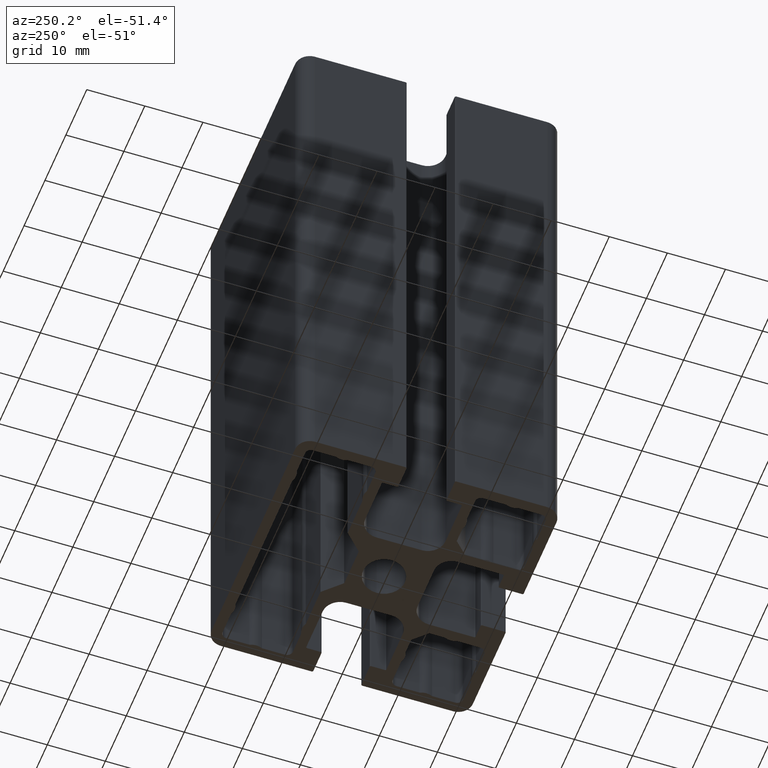
[diagram: clean part render]
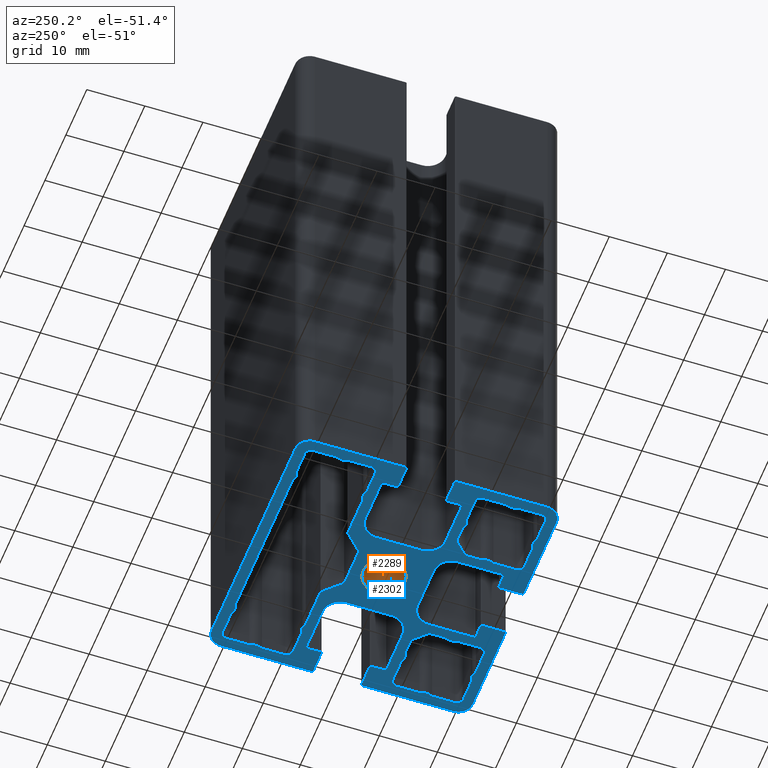
[diagram: same view with the hole feature highlighted: cylindrical wall and planar end face, labeled with their STEP entity ids]
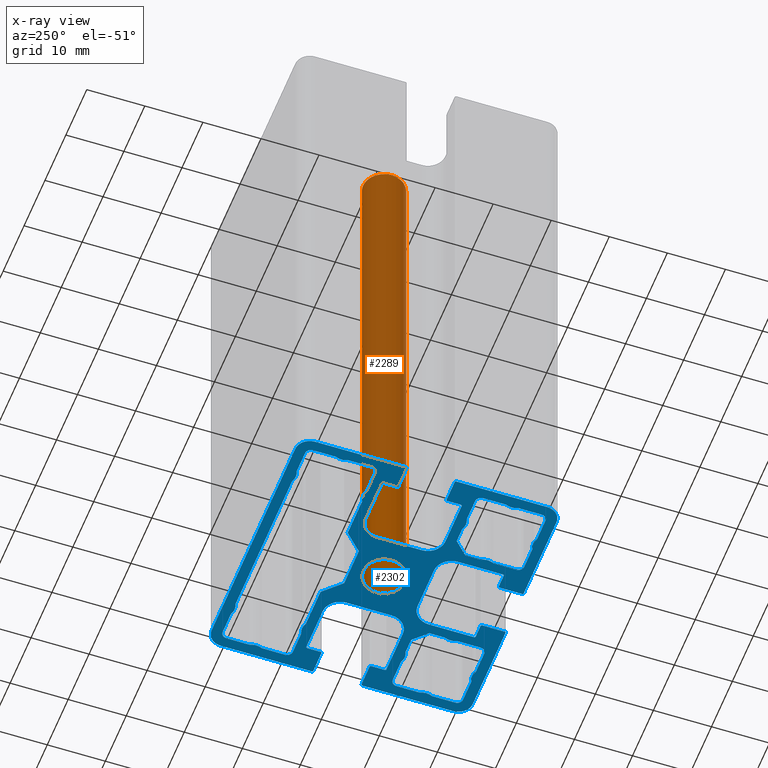
[diagram: x-ray of the same camera — body ghosted, the hole faces saturated]
A machine part, auxiliary view. The highlighted faces form one hole feature of diameter 7.2 mm: the cylindrical wall (entity #2289, orange) and its adjacent planar end face (entity #2302, blue) — they share a circular edge in the B-rep.
The next image is the same camera in x-ray (body ghosted, the hole faces saturated) — the bore reads through the body.
Wall:
#15=FACE_BOUND('',#400,.T.);
#120=CIRCLE('',#2503,3.6);
#121=CIRCLE('',#2504,3.6);
#178=CYLINDRICAL_SURFACE('',#2502,3.6);
#284=FACE_OUTER_BOUND('',#399,.T.);
#399=EDGE_LOOP('',(#1854));
#400=EDGE_LOOP('',(#1855));
#1094=VERTEX_POINT('',#3819);
#1095=VERTEX_POINT('',#3821);
#1418=EDGE_CURVE('',#1094,#1094,#120,.T.);
#1419=EDGE_CURVE('',#1095,#1095,#121,.T.);
#1854=ORIENTED_EDGE('',*,*,#1418,.F.);
#1855=ORIENTED_EDGE('',*,*,#1419,.F.);
#2289=ADVANCED_FACE('',(#284,#15),#178,.F.);
#2502=AXIS2_PLACEMENT_3D('',#3818,#3132,#3133);
#2503=AXIS2_PLACEMENT_3D('',#3820,#3134,#3135);
#2504=AXIS2_PLACEMENT_3D('',#3822,#3136,#3137);
#3132=DIRECTION('center_axis',(0.,0.,1.));
#3133=DIRECTION('ref_axis',(-1.,0.,0.));
#3134=DIRECTION('center_axis',(0.,0.,-1.));
#3135=DIRECTION('ref_axis',(-1.,0.,0.));
#3136=DIRECTION('center_axis',(0.,0.,1.));
#3137=DIRECTION('ref_axis',(-1.,0.,0.));
#3818=CARTESIAN_POINT('Origin',(0.,0.,0.));
#3819=CARTESIAN_POINT('',(3.6,-4.40872847693047E-16,100.));
#3820=CARTESIAN_POINT('Origin',(0.,0.,100.));
#3821=CARTESIAN_POINT('',(3.6,4.40872847693047E-16,0.));
#3822=CARTESIAN_POINT('Origin',(0.,0.,0.));
End face:
#20=FACE_BOUND('',#418,.T.);
#21=FACE_BOUND('',#419,.T.);
#22=FACE_BOUND('',#420,.T.);
#23=FACE_BOUND('',#421,.T.);
#25=CIRCLE('',#2309,2.5);
#27=CIRCLE('',#2313,1.);
#29=CIRCLE('',#2317,2.50000000000001);
#31=CIRCLE('',#2321,1.);
#33=CIRCLE('',#2325,2.5);
#35=CIRCLE('',#2329,1.);
#37=CIRCLE('',#2333,2.5);
#39=CIRCLE('',#2338,1.);
#41=CIRCLE('',#2342,2.50000000000001);
#43=CIRCLE('',#2346,1.);
#45=CIRCLE('',#2350,2.5);
#47=CIRCLE('',#2358,2.5);
#49=CIRCLE('',#2362,1.);
#51=CIRCLE('',#2366,2.5);
#53=CIRCLE('',#2370,1.);
#55=CIRCLE('',#2374,2.5);
#57=CIRCLE('',#2378,2.5);
#59=CIRCLE('',#2382,1.);
#61=CIRCLE('',#2386,2.5);
#63=CIRCLE('',#2392,2.5);
#65=CIRCLE('',#2396,1.);
#67=CIRCLE('',#2400,2.5);
#69=CIRCLE('',#2404,1.);
#71=CIRCLE('',#2408,2.5);
#73=CIRCLE('',#2411,3.);
#75=CIRCLE('',#2415,0.2);
#77=CIRCLE('',#2419,0.199999999999999);
#79=CIRCLE('',#2423,0.2);
#81=CIRCLE('',#2426,0.199999999999999);
#83=CIRCLE('',#2430,0.199999999999999);
#85=CIRCLE('',#2434,0.200000000000003);
#87=CIRCLE('',#2438,3.);
#89=CIRCLE('',#2443,3.);
#91=CIRCLE('',#2447,0.199999999999999);
#93=CIRCLE('',#2451,0.2);
#95=CIRCLE('',#2455,0.200000000000003);
#97=CIRCLE('',#2458,0.2);
#99=CIRCLE('',#2462,0.199999999999999);
#101=CIRCLE('',#2466,0.2);
#103=CIRCLE('',#2470,3.);
#105=CIRCLE('',#2473,3.);
#107=CIRCLE('',#2477,0.199999999999999);
#109=CIRCLE('',#2481,0.199999999999999);
#111=CIRCLE('',#2485,0.199999999999999);
#113=CIRCLE('',#2488,0.200000000000003);
#115=CIRCLE('',#2492,0.199999999999999);
#117=CIRCLE('',#2496,0.199999999999999);
#119=CIRCLE('',#2500,3.);
#121=CIRCLE('',#2504,3.6);
#126=CIRCLE('',#2514,2.5);
#127=CIRCLE('',#2517,2.5);
#128=CIRCLE('',#2520,2.5);
#129=CIRCLE('',#2523,2.5);
#297=FACE_OUTER_BOUND('',#417,.T.);
#417=EDGE_LOOP('',(#2013,#2014,#2015,#2016,#2017,#2018,#2019,#2020,#2021,
#2022,#2023,#2024,#2025,#2026,#2027,#2028,#2029,#2030,#2031,#2032,#2033,
#2034,#2035,#2036,#2037,#2038,#2039,#2040,#2041,#2042,#2043,#2044,#2045,
#2046,#2047,#2048,#2049,#2050,#2051,#2052,#2053,#2054,#2055,#2056,#2057,
#2058,#2059,#2060,#2061,#2062,#2063,#2064,#2065,#2066,#2067,#2068));
#418=EDGE_LOOP('',(#2069,#2070,#2071,#2072,#2073,#2074,#2075,#2076,#2077,
#2078,#2079,#2080,#2081,#2082,#2083,#2084));
#419=EDGE_LOOP('',(#2085,#2086,#2087,#2088,#2089,#2090,#2091,#2092,#2093,
#2094,#2095,#2096,#2097,#2098,#2099,#2100,#2101,#2102,#2103,#2104,#2105,
#2106,#2107,#2108));
#420=EDGE_LOOP('',(#2109,#2110,#2111,#2112,#2113,#2114,#2115,#2116,#2117,
#2118,#2119,#2120,#2121,#2122,#2123,#2124));
#421=EDGE_LOOP('',(#2125));
#424=LINE('',#3210,#656);
#427=LINE('',#3216,#659);
#431=LINE('',#3228,#663);
#435=LINE('',#3240,#667);
#439=LINE('',#3252,#671);
#443=LINE('',#3264,#675);
#447=LINE('',#3276,#679);
#451=LINE('',#3288,#683);
#455=LINE('',#3298,#687);
#458=LINE('',#3306,#690);
#462=LINE('',#3318,#694);
#466=LINE('',#3330,#698);
#470=LINE('',#3342,#702);
#474=LINE('',#3354,#706);
#477=LINE('',#3360,#709);
#480=LINE('',#3366,#712);
#483=LINE('',#3372,#715);
#486=LINE('',#3378,#718);
#490=LINE('',#3390,#722);
#494=LINE('',#3402,#726);
#498=LINE('',#3414,#730);
#502=LINE('',#3426,#734);
#506=LINE('',#3438,#738);
#510=LINE('',#3450,#742);
#515=LINE('',#3463,#747);
#519=LINE('',#3475,#751);
#522=LINE('',#3481,#754);
#525=LINE('',#3487,#757);
#529=LINE('',#3499,#761);
#533=LINE('',#3511,#765);
#537=LINE('',#3523,#769);
#541=LINE('',#3535,#773);
#545=LINE('',#3552,#777);
#549=LINE('',#3564,#781);
#553=LINE('',#3576,#785);
#559=LINE('',#3597,#791);
#563=LINE('',#3609,#795);
#567=LINE('',#3621,#799);
#571=LINE('',#3631,#803);
#574=LINE('',#3639,#806);
#579=LINE('',#3652,#811);
#583=LINE('',#3664,#815);
#587=LINE('',#3676,#819);
#593=LINE('',#3697,#825);
#597=LINE('',#3709,#829);
#601=LINE('',#3721,#833);
#605=LINE('',#3738,#837);
#609=LINE('',#3750,#841);
#613=LINE('',#3762,#845);
#619=LINE('',#3783,#851);
#623=LINE('',#3795,#855);
#627=LINE('',#3807,#859);
#631=LINE('',#3817,#863);
#632=LINE('',#3825,#864);
#637=LINE('',#3834,#869);
#638=LINE('',#3837,#870);
#646=LINE('',#3860,#878);
#648=LINE('',#3866,#880);
#651=LINE('',#3874,#883);
#653=LINE('',#3880,#885);
#656=VECTOR('',#2532,3.25552672718276);
#659=VECTOR('',#2537,2.65827023898986);
#663=VECTOR('',#2549,3.96027526411484);
#667=VECTOR('',#2561,3.96027526411483);
#671=VECTOR('',#2573,3.96027526411483);
#675=VECTOR('',#2585,3.96027526411483);
#679=VECTOR('',#2597,3.96027526411483);
#683=VECTOR('',#2609,3.96027526411483);
#687=VECTOR('',#2621,2.65827023898985);
#690=VECTOR('',#2626,3.96027526411483);
#694=VECTOR('',#2638,3.96027526411482);
#698=VECTOR('',#2650,3.96027526411483);
#702=VECTOR('',#2662,3.96027526411483);
#706=VECTOR('',#2674,7.06027526411483);
#709=VECTOR('',#2679,4.24264068711929);
#712=VECTOR('',#2684,6.99999999999999);
#715=VECTOR('',#2689,4.24264068711929);
#718=VECTOR('',#2694,7.06027526411483);
#722=VECTOR('',#2706,3.96027526411483);
#726=VECTOR('',#2718,3.96027526411483);
#730=VECTOR('',#2730,3.96027526411483);
#734=VECTOR('',#2742,3.96027526411483);
#738=VECTOR('',#2754,27.1205505282297);
#742=VECTOR('',#2766,3.96027526411483);
#747=VECTOR('',#2779,3.96027526411482);
#751=VECTOR('',#2791,2.65827023898984);
#754=VECTOR('',#2796,3.25552672718276);
#757=VECTOR('',#2801,2.65827023898985);
#761=VECTOR('',#2813,3.96027526411483);
#765=VECTOR('',#2825,3.96027526411483);
#769=VECTOR('',#2837,3.96027526411483);
#773=VECTOR('',#2849,3.96027526411483);
#777=VECTOR('',#2867,7.8);
#781=VECTOR('',#2879,2.35);
#785=VECTOR('',#2891,3.90000000000001);
#791=VECTOR('',#2911,3.9);
#795=VECTOR('',#2923,2.35);
#799=VECTOR('',#2935,7.8);
#803=VECTOR('',#2947,7.8);
#806=VECTOR('',#2952,7.8);
#811=VECTOR('',#2965,7.8);
#815=VECTOR('',#2977,2.35);
#819=VECTOR('',#2989,3.9);
#825=VECTOR('',#3009,3.9);
#829=VECTOR('',#3021,2.35);
#833=VECTOR('',#3033,7.8);
#837=VECTOR('',#3051,7.8);
#841=VECTOR('',#3063,2.35);
#845=VECTOR('',#3075,3.90000000000001);
#851=VECTOR('',#3095,3.9);
#855=VECTOR('',#3107,2.35);
#859=VECTOR('',#3119,7.8);
#863=VECTOR('',#3131,7.8);
#864=VECTOR('',#3140,15.65);
#869=VECTOR('',#3147,15.65);
#870=VECTOR('',#3150,15.65);
#878=VECTOR('',#3174,15.65);
#880=VECTOR('',#3182,15.65);
#883=VECTOR('',#3191,40.);
#885=VECTOR('',#3199,15.65);
#888=VERTEX_POINT('',#3207);
#889=VERTEX_POINT('',#3209);
#891=VERTEX_POINT('',#3215);
#893=VERTEX_POINT('',#3221);
#895=VERTEX_POINT('',#3227);
#897=VERTEX_POINT('',#3233);
#899=VERTEX_POINT('',#3239);
#901=VERTEX_POINT('',#3245);
#903=VERTEX_POINT('',#3251);
#905=VERTEX_POINT('',#3257);
#907=VERTEX_POINT('',#3263);
#909=VERTEX_POINT('',#3269);
#911=VERTEX_POINT('',#3275);
#913=VERTEX_POINT('',#3281);
#915=VERTEX_POINT('',#3287);
#917=VERTEX_POINT('',#3293);
#920=VERTEX_POINT('',#3303);
#921=VERTEX_POINT('',#3305);
#923=VERTEX_POINT('',#3311);
#925=VERTEX_POINT('',#3317);
#927=VERTEX_POINT('',#3323);
#929=VERTEX_POINT('',#3329);
#931=VERTEX_POINT('',#3335);
#933=VERTEX_POINT('',#3341);
#935=VERTEX_POINT('',#3347);
#937=VERTEX_POINT('',#3353);
#939=VERTEX_POINT('',#3359);
#941=VERTEX_POINT('',#3365);
#943=VERTEX_POINT('',#3371);
#945=VERTEX_POINT('',#3377);
#947=VERTEX_POINT('',#3383);
#949=VERTEX_POINT('',#3389);
#951=VERTEX_POINT('',#3395);
#953=VERTEX_POINT('',#3401);
#955=VERTEX_POINT('',#3407);
#957=VERTEX_POINT('',#3413);
#959=VERTEX_POINT('',#3419);
#961=VERTEX_POINT('',#3425);
#963=VERTEX_POINT('',#3431);
#965=VERTEX_POINT('',#3437);
#968=VERTEX_POINT('',#3447);
#969=VERTEX_POINT('',#3449);
#971=VERTEX_POINT('',#3455);
#973=VERTEX_POINT('',#3461);
#975=VERTEX_POINT('',#3467);
#977=VERTEX_POINT('',#3473);
#979=VERTEX_POINT('',#3479);
#981=VERTEX_POINT('',#3485);
#983=VERTEX_POINT('',#3491);
#985=VERTEX_POINT('',#3497);
#987=VERTEX_POINT('',#3503);
#989=VERTEX_POINT('',#3509);
#991=VERTEX_POINT('',#3515);
#993=VERTEX_POINT('',#3521);
#995=VERTEX_POINT('',#3527);
#997=VERTEX_POINT('',#3533);
#1000=VERTEX_POINT('',#3543);
#1001=VERTEX_POINT('',#3545);
#1003=VERTEX_POINT('',#3551);
#1005=VERTEX_POINT('',#3557);
#1007=VERTEX_POINT('',#3563);
#1009=VERTEX_POINT('',#3569);
#1011=VERTEX_POINT('',#3575);
#1013=VERTEX_POINT('',#3581);
#1016=VERTEX_POINT('',#3588);
#1017=VERTEX_POINT('',#3590);
#1019=VERTEX_POINT('',#3596);
#1021=VERTEX_POINT('',#3602);
#1023=VERTEX_POINT('',#3608);
#1025=VERTEX_POINT('',#3614);
#1027=VERTEX_POINT('',#3620);
#1029=VERTEX_POINT('',#3626);
#1032=VERTEX_POINT('',#3636);
#1033=VERTEX_POINT('',#3638);
#1035=VERTEX_POINT('',#3644);
#1037=VERTEX_POINT('',#3650);
#1039=VERTEX_POINT('',#3656);
#1041=VERTEX_POINT('',#3662);
#1043=VERTEX_POINT('',#3668);
#1045=VERTEX_POINT('',#3674);
#1047=VERTEX_POINT('',#3680);
#1050=VERTEX_POINT('',#3687);
#1051=VERTEX_POINT('',#3689);
#1053=VERTEX_POINT('',#3695);
#1055=VERTEX_POINT('',#3701);
#1057=VERTEX_POINT('',#3707);
#1059=VERTEX_POINT('',#3713);
#1061=VERTEX_POINT('',#3719);
#1064=VERTEX_POINT('',#3729);
#1065=VERTEX_POINT('',#3731);
#1067=VERTEX_POINT('',#3737);
#1069=VERTEX_POINT('',#3743);
#1071=VERTEX_POINT('',#3749);
#1073=VERTEX_POINT('',#3755);
#1075=VERTEX_POINT('',#3761);
#1077=VERTEX_POINT('',#3767);
#1080=VERTEX_POINT('',#3774);
#1081=VERTEX_POINT('',#3776);
#1083=VERTEX_POINT('',#3782);
#1085=VERTEX_POINT('',#3788);
#1087=VERTEX_POINT('',#3794);
#1089=VERTEX_POINT('',#3800);
#1091=VERTEX_POINT('',#3806);
#1093=VERTEX_POINT('',#3812);
#1095=VERTEX_POINT('',#3821);
#1096=VERTEX_POINT('',#3824);
#1099=VERTEX_POINT('',#3832);
#1100=VERTEX_POINT('',#3836);
#1107=VERTEX_POINT('',#3858);
#1108=VERTEX_POINT('',#3864);
#1109=VERTEX_POINT('',#3868);
#1110=VERTEX_POINT('',#3872);
#1111=VERTEX_POINT('',#3876);
#1114=EDGE_CURVE('',#889,#888,#424,.T.);
#1117=EDGE_CURVE('',#891,#889,#427,.T.);
#1120=EDGE_CURVE('',#893,#891,#25,.T.);
#1123=EDGE_CURVE('',#895,#893,#431,.T.);
#1126=EDGE_CURVE('',#897,#895,#27,.T.);
#1129=EDGE_CURVE('',#899,#897,#435,.T.);
#1132=EDGE_CURVE('',#901,#899,#29,.T.);
#1135=EDGE_CURVE('',#903,#901,#439,.T.);
#1138=EDGE_CURVE('',#905,#903,#31,.T.);
#1141=EDGE_CURVE('',#907,#905,#443,.T.);
#1144=EDGE_CURVE('',#909,#907,#33,.T.);
#1147=EDGE_CURVE('',#911,#909,#447,.T.);
#1150=EDGE_CURVE('',#913,#911,#35,.T.);
#1153=EDGE_CURVE('',#915,#913,#451,.T.);
#1156=EDGE_CURVE('',#917,#915,#37,.T.);
#1159=EDGE_CURVE('',#888,#917,#455,.T.);
#1162=EDGE_CURVE('',#921,#920,#458,.T.);
#1165=EDGE_CURVE('',#923,#921,#39,.T.);
#1168=EDGE_CURVE('',#925,#923,#462,.T.);
#1171=EDGE_CURVE('',#927,#925,#41,.T.);
#1174=EDGE_CURVE('',#929,#927,#466,.T.);
#1177=EDGE_CURVE('',#931,#929,#43,.T.);
#1180=EDGE_CURVE('',#933,#931,#470,.T.);
#1183=EDGE_CURVE('',#935,#933,#45,.T.);
#1186=EDGE_CURVE('',#937,#935,#474,.T.);
#1189=EDGE_CURVE('',#939,#937,#477,.T.);
#1192=EDGE_CURVE('',#941,#939,#480,.T.);
#1195=EDGE_CURVE('',#943,#941,#483,.T.);
#1198=EDGE_CURVE('',#945,#943,#486,.T.);
#1201=EDGE_CURVE('',#947,#945,#47,.T.);
#1204=EDGE_CURVE('',#949,#947,#490,.T.);
#1207=EDGE_CURVE('',#951,#949,#49,.T.);
#1210=EDGE_CURVE('',#953,#951,#494,.T.);
#1213=EDGE_CURVE('',#955,#953,#51,.T.);
#1216=EDGE_CURVE('',#957,#955,#498,.T.);
#1219=EDGE_CURVE('',#959,#957,#53,.T.);
#1222=EDGE_CURVE('',#961,#959,#502,.T.);
#1225=EDGE_CURVE('',#963,#961,#55,.T.);
#1228=EDGE_CURVE('',#965,#963,#506,.T.);
#1231=EDGE_CURVE('',#920,#965,#57,.T.);
#1234=EDGE_CURVE('',#969,#968,#510,.T.);
#1238=EDGE_CURVE('',#968,#971,#59,.T.);
#1241=EDGE_CURVE('',#971,#973,#515,.T.);
#1244=EDGE_CURVE('',#973,#975,#61,.T.);
#1247=EDGE_CURVE('',#975,#977,#519,.T.);
#1250=EDGE_CURVE('',#977,#979,#522,.T.);
#1253=EDGE_CURVE('',#979,#981,#525,.T.);
#1256=EDGE_CURVE('',#981,#983,#63,.T.);
#1259=EDGE_CURVE('',#983,#985,#529,.T.);
#1262=EDGE_CURVE('',#985,#987,#65,.T.);
#1265=EDGE_CURVE('',#987,#989,#533,.T.);
#1268=EDGE_CURVE('',#989,#991,#67,.T.);
#1271=EDGE_CURVE('',#991,#993,#537,.T.);
#1274=EDGE_CURVE('',#993,#995,#69,.T.);
#1277=EDGE_CURVE('',#995,#997,#541,.T.);
#1279=EDGE_CURVE('',#997,#969,#71,.T.);
#1282=EDGE_CURVE('',#1001,#1000,#73,.T.);
#1285=EDGE_CURVE('',#1003,#1001,#545,.T.);
#1288=EDGE_CURVE('',#1005,#1003,#75,.T.);
#1291=EDGE_CURVE('',#1007,#1005,#549,.T.);
#1294=EDGE_CURVE('',#1009,#1007,#77,.T.);
#1297=EDGE_CURVE('',#1011,#1009,#553,.T.);
#1300=EDGE_CURVE('',#1013,#1011,#79,.T.);
#1304=EDGE_CURVE('',#1017,#1016,#81,.T.);
#1307=EDGE_CURVE('',#1019,#1017,#559,.T.);
#1310=EDGE_CURVE('',#1021,#1019,#83,.T.);
#1313=EDGE_CURVE('',#1023,#1021,#563,.T.);
#1316=EDGE_CURVE('',#1025,#1023,#85,.T.);
#1319=EDGE_CURVE('',#1027,#1025,#567,.T.);
#1322=EDGE_CURVE('',#1029,#1027,#87,.T.);
#1325=EDGE_CURVE('',#1000,#1029,#571,.T.);
#1328=EDGE_CURVE('',#1033,#1032,#574,.T.);
#1332=EDGE_CURVE('',#1032,#1035,#89,.T.);
#1335=EDGE_CURVE('',#1035,#1037,#579,.T.);
#1338=EDGE_CURVE('',#1037,#1039,#91,.T.);
#1341=EDGE_CURVE('',#1039,#1041,#583,.T.);
#1344=EDGE_CURVE('',#1041,#1043,#93,.T.);
#1347=EDGE_CURVE('',#1043,#1045,#587,.T.);
#1350=EDGE_CURVE('',#1045,#1047,#95,.T.);
#1353=EDGE_CURVE('',#1051,#1050,#97,.T.);
#1357=EDGE_CURVE('',#1050,#1053,#593,.T.);
#1360=EDGE_CURVE('',#1053,#1055,#99,.T.);
#1363=EDGE_CURVE('',#1055,#1057,#597,.T.);
#1366=EDGE_CURVE('',#1057,#1059,#101,.T.);
#1369=EDGE_CURVE('',#1059,#1061,#601,.T.);
#1371=EDGE_CURVE('',#1061,#1033,#103,.T.);
#1374=EDGE_CURVE('',#1065,#1064,#105,.T.);
#1377=EDGE_CURVE('',#1067,#1065,#605,.T.);
#1380=EDGE_CURVE('',#1069,#1067,#107,.T.);
#1383=EDGE_CURVE('',#1071,#1069,#609,.T.);
#1386=EDGE_CURVE('',#1073,#1071,#109,.T.);
#1389=EDGE_CURVE('',#1075,#1073,#613,.T.);
#1392=EDGE_CURVE('',#1077,#1075,#111,.T.);
#1396=EDGE_CURVE('',#1081,#1080,#113,.T.);
#1399=EDGE_CURVE('',#1083,#1081,#619,.T.);
#1402=EDGE_CURVE('',#1085,#1083,#115,.T.);
#1405=EDGE_CURVE('',#1087,#1085,#623,.T.);
#1408=EDGE_CURVE('',#1089,#1087,#117,.T.);
#1411=EDGE_CURVE('',#1091,#1089,#627,.T.);
#1414=EDGE_CURVE('',#1093,#1091,#119,.T.);
#1417=EDGE_CURVE('',#1064,#1093,#631,.T.);
#1419=EDGE_CURVE('',#1095,#1095,#121,.T.);
#1420=EDGE_CURVE('',#1096,#1013,#632,.T.);
#1425=EDGE_CURVE('',#1047,#1099,#637,.T.);
#1426=EDGE_CURVE('',#1100,#1077,#638,.T.);
#1437=EDGE_CURVE('',#1099,#1100,#126,.T.);
#1439=EDGE_CURVE('',#1080,#1107,#646,.T.);
#1440=EDGE_CURVE('',#1107,#1096,#127,.T.);
#1442=EDGE_CURVE('',#1016,#1108,#648,.T.);
#1444=EDGE_CURVE('',#1108,#1109,#128,.T.);
#1446=EDGE_CURVE('',#1109,#1110,#651,.T.);
#1448=EDGE_CURVE('',#1110,#1111,#129,.T.);
#1449=EDGE_CURVE('',#1111,#1051,#653,.T.);
#2013=ORIENTED_EDGE('',*,*,#1304,.T.);
#2014=ORIENTED_EDGE('',*,*,#1442,.T.);
#2015=ORIENTED_EDGE('',*,*,#1444,.T.);
#2016=ORIENTED_EDGE('',*,*,#1446,.T.);
#2017=ORIENTED_EDGE('',*,*,#1448,.T.);
#2018=ORIENTED_EDGE('',*,*,#1449,.T.);
#2019=ORIENTED_EDGE('',*,*,#1353,.T.);
#2020=ORIENTED_EDGE('',*,*,#1357,.T.);
#2021=ORIENTED_EDGE('',*,*,#1360,.T.);
#2022=ORIENTED_EDGE('',*,*,#1363,.T.);
#2023=ORIENTED_EDGE('',*,*,#1366,.T.);
#2024=ORIENTED_EDGE('',*,*,#1369,.T.);
#2025=ORIENTED_EDGE('',*,*,#1371,.T.);
#2026=ORIENTED_EDGE('',*,*,#1328,.T.);
#2027=ORIENTED_EDGE('',*,*,#1332,.T.);
#2028=ORIENTED_EDGE('',*,*,#1335,.T.);
#2029=ORIENTED_EDGE('',*,*,#1338,.T.);
#2030=ORIENTED_EDGE('',*,*,#1341,.T.);
#2031=ORIENTED_EDGE('',*,*,#1344,.T.);
#2032=ORIENTED_EDGE('',*,*,#1347,.T.);
#2033=ORIENTED_EDGE('',*,*,#1350,.T.);
#2034=ORIENTED_EDGE('',*,*,#1425,.T.);
#2035=ORIENTED_EDGE('',*,*,#1437,.T.);
#2036=ORIENTED_EDGE('',*,*,#1426,.T.);
#2037=ORIENTED_EDGE('',*,*,#1392,.T.);
#2038=ORIENTED_EDGE('',*,*,#1389,.T.);
#2039=ORIENTED_EDGE('',*,*,#1386,.T.);
#2040=ORIENTED_EDGE('',*,*,#1383,.T.);
#2041=ORIENTED_EDGE('',*,*,#1380,.T.);
#2042=ORIENTED_EDGE('',*,*,#1377,.T.);
#2043=ORIENTED_EDGE('',*,*,#1374,.T.);
#2044=ORIENTED_EDGE('',*,*,#1417,.T.);
#2045=ORIENTED_EDGE('',*,*,#1414,.T.);
#2046=ORIENTED_EDGE('',*,*,#1411,.T.);
#2047=ORIENTED_EDGE('',*,*,#1408,.T.);
#2048=ORIENTED_EDGE('',*,*,#1405,.T.);
#2049=ORIENTED_EDGE('',*,*,#1402,.T.);
#2050=ORIENTED_EDGE('',*,*,#1399,.T.);
#2051=ORIENTED_EDGE('',*,*,#1396,.T.);
#2052=ORIENTED_EDGE('',*,*,#1439,.T.);
#2053=ORIENTED_EDGE('',*,*,#1440,.T.);
#2054=ORIENTED_EDGE('',*,*,#1420,.T.);
#2055=ORIENTED_EDGE('',*,*,#1300,.T.);
#2056=ORIENTED_EDGE('',*,*,#1297,.T.);
#2057=ORIENTED_EDGE('',*,*,#1294,.T.);
#2058=ORIENTED_EDGE('',*,*,#1291,.T.);
#2059=ORIENTED_EDGE('',*,*,#1288,.T.);
#2060=ORIENTED_EDGE('',*,*,#1285,.T.);
#2061=ORIENTED_EDGE('',*,*,#1282,.T.);
#2062=ORIENTED_EDGE('',*,*,#1325,.T.);
#2063=ORIENTED_EDGE('',*,*,#1322,.T.);
#2064=ORIENTED_EDGE('',*,*,#1319,.T.);
#2065=ORIENTED_EDGE('',*,*,#1316,.T.);
#2066=ORIENTED_EDGE('',*,*,#1313,.T.);
#2067=ORIENTED_EDGE('',*,*,#1310,.T.);
#2068=ORIENTED_EDGE('',*,*,#1307,.T.);
#2069=ORIENTED_EDGE('',*,*,#1114,.T.);
#2070=ORIENTED_EDGE('',*,*,#1159,.T.);
#2071=ORIENTED_EDGE('',*,*,#1156,.T.);
#2072=ORIENTED_EDGE('',*,*,#1153,.T.);
#2073=ORIENTED_EDGE('',*,*,#1150,.T.);
#2074=ORIENTED_EDGE('',*,*,#1147,.T.);
#2075=ORIENTED_EDGE('',*,*,#1144,.T.);
#2076=ORIENTED_EDGE('',*,*,#1141,.T.);
#2077=ORIENTED_EDGE('',*,*,#1138,.T.);
#2078=ORIENTED_EDGE('',*,*,#1135,.T.);
#2079=ORIENTED_EDGE('',*,*,#1132,.T.);
#2080=ORIENTED_EDGE('',*,*,#1129,.T.);
#2081=ORIENTED_EDGE('',*,*,#1126,.T.);
#2082=ORIENTED_EDGE('',*,*,#1123,.T.);
#2083=ORIENTED_EDGE('',*,*,#1120,.T.);
#2084=ORIENTED_EDGE('',*,*,#1117,.T.);
#2085=ORIENTED_EDGE('',*,*,#1162,.T.);
#2086=ORIENTED_EDGE('',*,*,#1231,.T.);
#2087=ORIENTED_EDGE('',*,*,#1228,.T.);
#2088=ORIENTED_EDGE('',*,*,#1225,.T.);
#2089=ORIENTED_EDGE('',*,*,#1222,.T.);
#2090=ORIENTED_EDGE('',*,*,#1219,.T.);
#2091=ORIENTED_EDGE('',*,*,#1216,.T.);
#2092=ORIENTED_EDGE('',*,*,#1213,.T.);
#2093=ORIENTED_EDGE('',*,*,#1210,.T.);
#2094=ORIENTED_EDGE('',*,*,#1207,.T.);
#2095=ORIENTED_EDGE('',*,*,#1204,.T.);
#2096=ORIENTED_EDGE('',*,*,#1201,.T.);
#2097=ORIENTED_EDGE('',*,*,#1198,.T.);
#2098=ORIENTED_EDGE('',*,*,#1195,.T.);
#2099=ORIENTED_EDGE('',*,*,#1192,.T.);
#2100=ORIENTED_EDGE('',*,*,#1189,.T.);
#2101=ORIENTED_EDGE('',*,*,#1186,.T.);
#2102=ORIENTED_EDGE('',*,*,#1183,.T.);
#2103=ORIENTED_EDGE('',*,*,#1180,.T.);
#2104=ORIENTED_EDGE('',*,*,#1177,.T.);
#2105=ORIENTED_EDGE('',*,*,#1174,.T.);
#2106=ORIENTED_EDGE('',*,*,#1171,.T.);
#2107=ORIENTED_EDGE('',*,*,#1168,.T.);
#2108=ORIENTED_EDGE('',*,*,#1165,.T.);
#2109=ORIENTED_EDGE('',*,*,#1234,.T.);
#2110=ORIENTED_EDGE('',*,*,#1238,.T.);
#2111=ORIENTED_EDGE('',*,*,#1241,.T.);
#2112=ORIENTED_EDGE('',*,*,#1244,.T.);
#2113=ORIENTED_EDGE('',*,*,#1247,.T.);
#2114=ORIENTED_EDGE('',*,*,#1250,.T.);
#2115=ORIENTED_EDGE('',*,*,#1253,.T.);
#2116=ORIENTED_EDGE('',*,*,#1256,.T.);
#2117=ORIENTED_EDGE('',*,*,#1259,.T.);
#2118=ORIENTED_EDGE('',*,*,#1262,.T.);
#2119=ORIENTED_EDGE('',*,*,#1265,.T.);
#2120=ORIENTED_EDGE('',*,*,#1268,.T.);
#2121=ORIENTED_EDGE('',*,*,#1271,.T.);
#2122=ORIENTED_EDGE('',*,*,#1274,.T.);
#2123=ORIENTED_EDGE('',*,*,#1277,.T.);
#2124=ORIENTED_EDGE('',*,*,#1279,.T.);
#2125=ORIENTED_EDGE('',*,*,#1419,.T.);
#2187=PLANE('',#2525);
#2302=ADVANCED_FACE('',(#297,#20,#21,#22,#23),#2187,.F.);
#2309=AXIS2_PLACEMENT_3D('',#3222,#2543,#2544);
#2313=AXIS2_PLACEMENT_3D('',#3234,#2555,#2556);
#2317=AXIS2_PLACEMENT_3D('',#3246,#2567,#2568);
#2321=AXIS2_PLACEMENT_3D('',#3258,#2579,#2580);
#2325=AXIS2_PLACEMENT_3D('',#3270,#2591,#2592);
#2329=AXIS2_PLACEMENT_3D('',#3282,#2603,#2604);
#2333=AXIS2_PLACEMENT_3D('',#3294,#2615,#2616);
#2338=AXIS2_PLACEMENT_3D('',#3312,#2632,#2633);
#2342=AXIS2_PLACEMENT_3D('',#3324,#2644,#2645);
#2346=AXIS2_PLACEMENT_3D('',#3336,#2656,#2657);
#2350=AXIS2_PLACEMENT_3D('',#3348,#2668,#2669);
#2358=AXIS2_PLACEMENT_3D('',#3384,#2700,#2701);
#2362=AXIS2_PLACEMENT_3D('',#3396,#2712,#2713);
#2366=AXIS2_PLACEMENT_3D('',#3408,#2724,#2725);
#2370=AXIS2_PLACEMENT_3D('',#3420,#2736,#2737);
#2374=AXIS2_PLACEMENT_3D('',#3432,#2748,#2749);
#2378=AXIS2_PLACEMENT_3D('',#3442,#2760,#2761);
#2382=AXIS2_PLACEMENT_3D('',#3457,#2773,#2774);
#2386=AXIS2_PLACEMENT_3D('',#3469,#2785,#2786);
#2392=AXIS2_PLACEMENT_3D('',#3493,#2807,#2808);
#2396=AXIS2_PLACEMENT_3D('',#3505,#2819,#2820);
#2400=AXIS2_PLACEMENT_3D('',#3517,#2831,#2832);
#2404=AXIS2_PLACEMENT_3D('',#3529,#2843,#2844);
#2408=AXIS2_PLACEMENT_3D('',#3538,#2854,#2855);
#2411=AXIS2_PLACEMENT_3D('',#3546,#2861,#2862);
#2415=AXIS2_PLACEMENT_3D('',#3558,#2873,#2874);
#2419=AXIS2_PLACEMENT_3D('',#3570,#2885,#2886);
#2423=AXIS2_PLACEMENT_3D('',#3582,#2897,#2898);
#2426=AXIS2_PLACEMENT_3D('',#3591,#2905,#2906);
#2430=AXIS2_PLACEMENT_3D('',#3603,#2917,#2918);
#2434=AXIS2_PLACEMENT_3D('',#3615,#2929,#2930);
#2438=AXIS2_PLACEMENT_3D('',#3627,#2941,#2942);
#2443=AXIS2_PLACEMENT_3D('',#3646,#2959,#2960);
#2447=AXIS2_PLACEMENT_3D('',#3658,#2971,#2972);
#2451=AXIS2_PLACEMENT_3D('',#3670,#2983,#2984);
#2455=AXIS2_PLACEMENT_3D('',#3682,#2995,#2996);
#2458=AXIS2_PLACEMENT_3D('',#3690,#3002,#3003);
#2462=AXIS2_PLACEMENT_3D('',#3703,#3015,#3016);
#2466=AXIS2_PLACEMENT_3D('',#3715,#3027,#3028);
#2470=AXIS2_PLACEMENT_3D('',#3724,#3038,#3039);
#2473=AXIS2_PLACEMENT_3D('',#3732,#3045,#3046);
#2477=AXIS2_PLACEMENT_3D('',#3744,#3057,#3058);
#2481=AXIS2_PLACEMENT_3D('',#3756,#3069,#3070);
#2485=AXIS2_PLACEMENT_3D('',#3768,#3081,#3082);
#2488=AXIS2_PLACEMENT_3D('',#3777,#3089,#3090);
#2492=AXIS2_PLACEMENT_3D('',#3789,#3101,#3102);
#2496=AXIS2_PLACEMENT_3D('',#3801,#3113,#3114);
#2500=AXIS2_PLACEMENT_3D('',#3813,#3125,#3126);
#2504=AXIS2_PLACEMENT_3D('',#3822,#3136,#3137);
#2514=AXIS2_PLACEMENT_3D('',#3856,#3169,#3170);
#2517=AXIS2_PLACEMENT_3D('',#3862,#3177,#3178);
#2520=AXIS2_PLACEMENT_3D('',#3870,#3186,#3187);
#2523=AXIS2_PLACEMENT_3D('',#3878,#3195,#3196);
#2525=AXIS2_PLACEMENT_3D('',#3881,#3200,#3201);
#2532=DIRECTION('',(-0.707106781186547,-0.707106781186548,0.));
#2537=DIRECTION('',(-1.,0.,0.));
#2543=DIRECTION('center_axis',(0.,0.,-1.));
#2544=DIRECTION('ref_axis',(-0.435889894354067,-0.9,0.));
#2549=DIRECTION('',(-1.,0.,0.));
#2555=DIRECTION('center_axis',(0.,0.,1.));
#2556=DIRECTION('ref_axis',(-1.,0.,0.));
#2561=DIRECTION('',(1.12135945163731E-15,1.,0.));
#2567=DIRECTION('center_axis',(0.,0.,-1.));
#2568=DIRECTION('ref_axis',(-0.900000000000001,0.435889894354065,0.));
#2573=DIRECTION('',(1.12135945163732E-15,1.,0.));
#2579=DIRECTION('center_axis',(0.,0.,1.));
#2580=DIRECTION('ref_axis',(0.,1.,0.));
#2585=DIRECTION('',(1.,0.,0.));
#2591=DIRECTION('center_axis',(0.,0.,-1.));
#2592=DIRECTION('ref_axis',(0.435889894354068,0.9,0.));
#2597=DIRECTION('',(1.,-1.12135945163731E-15,0.));
#2603=DIRECTION('center_axis',(0.,0.,1.));
#2604=DIRECTION('ref_axis',(1.,0.,0.));
#2609=DIRECTION('',(-5.60679725818658E-16,-1.,0.));
#2615=DIRECTION('center_axis',(0.,0.,-1.));
#2616=DIRECTION('ref_axis',(0.899999999999999,-0.435889894354069,0.));
#2621=DIRECTION('',(0.,-1.,0.));
#2626=DIRECTION('',(-1.,0.,0.));
#2632=DIRECTION('center_axis',(0.,0.,1.));
#2633=DIRECTION('ref_axis',(-1.,0.,0.));
#2638=DIRECTION('',(-1.12135945163732E-15,1.,0.));
#2644=DIRECTION('center_axis',(0.,0.,-1.));
#2645=DIRECTION('ref_axis',(-0.899999999999999,0.435889894354069,0.));
#2650=DIRECTION('',(1.12135945163731E-15,1.,0.));
#2656=DIRECTION('center_axis',(0.,0.,1.));
#2657=DIRECTION('ref_axis',(0.,1.,0.));
#2662=DIRECTION('',(1.,0.,0.));
#2668=DIRECTION('center_axis',(0.,0.,-1.));
#2669=DIRECTION('ref_axis',(0.435889894354068,0.9,0.));
#2674=DIRECTION('',(1.,0.,0.));
#2679=DIRECTION('',(0.707106781186548,0.707106781186547,0.));
#2684=DIRECTION('',(1.,0.,0.));
#2689=DIRECTION('',(0.707106781186548,-0.707106781186547,0.));
#2694=DIRECTION('',(1.,0.,0.));
#2700=DIRECTION('center_axis',(0.,0.,-1.));
#2701=DIRECTION('ref_axis',(0.435889894354068,0.9,0.));
#2706=DIRECTION('',(1.,0.,0.));
#2712=DIRECTION('center_axis',(0.,0.,1.));
#2713=DIRECTION('ref_axis',(1.,0.,0.));
#2718=DIRECTION('',(0.,-1.,0.));
#2724=DIRECTION('center_axis',(0.,0.,-1.));
#2725=DIRECTION('ref_axis',(0.9,-0.435889894354068,0.));
#2730=DIRECTION('',(0.,-1.,0.));
#2736=DIRECTION('center_axis',(0.,0.,1.));
#2737=DIRECTION('ref_axis',(0.,-1.,0.));
#2742=DIRECTION('',(-1.,0.,0.));
#2748=DIRECTION('center_axis',(0.,0.,-1.));
#2749=DIRECTION('ref_axis',(-0.435889894354068,-0.9,0.));
#2754=DIRECTION('',(-1.,-1.63746384642086E-16,0.));
#2760=DIRECTION('center_axis',(0.,0.,-1.));
#2761=DIRECTION('ref_axis',(-0.43588989435407,-0.899999999999999,0.));
#2766=DIRECTION('',(1.,0.,0.));
#2773=DIRECTION('center_axis',(0.,0.,1.));
#2774=DIRECTION('ref_axis',(0.,-1.,0.));
#2779=DIRECTION('',(0.,1.,0.));
#2785=DIRECTION('center_axis',(0.,0.,-1.));
#2786=DIRECTION('ref_axis',(0.899999999999999,-0.43588989435407,0.));
#2791=DIRECTION('',(0.,1.,0.));
#2796=DIRECTION('',(-0.707106781186547,0.707106781186548,0.));
#2801=DIRECTION('',(-1.,0.,0.));
#2807=DIRECTION('center_axis',(0.,0.,-1.));
#2808=DIRECTION('ref_axis',(0.435889894354067,0.9,0.));
#2813=DIRECTION('',(-1.,0.,0.));
#2819=DIRECTION('center_axis',(0.,0.,1.));
#2820=DIRECTION('ref_axis',(0.,1.,0.));
#2825=DIRECTION('',(0.,-1.,0.));
#2831=DIRECTION('center_axis',(0.,0.,-1.));
#2832=DIRECTION('ref_axis',(-0.9,0.435889894354068,0.));
#2837=DIRECTION('',(0.,-1.,0.));
#2843=DIRECTION('center_axis',(0.,0.,1.));
#2844=DIRECTION('ref_axis',(-1.,0.,0.));
#2849=DIRECTION('',(1.,0.,0.));
#2854=DIRECTION('center_axis',(0.,0.,-1.));
#2855=DIRECTION('ref_axis',(-0.435889894354067,-0.9,0.));
#2861=DIRECTION('center_axis',(0.,0.,1.));
#2862=DIRECTION('ref_axis',(0.,-1.,0.));
#2867=DIRECTION('',(1.,1.42336285208353E-16,0.));
#2873=DIRECTION('center_axis',(0.,0.,1.));
#2874=DIRECTION('ref_axis',(-1.,5.55111512312578E-15,0.));
#2879=DIRECTION('',(0.,-1.,0.));
#2885=DIRECTION('center_axis',(0.,0.,-1.));
#2886=DIRECTION('ref_axis',(-1.,2.77555756156292E-15,0.));
#2891=DIRECTION('',(1.,2.84672570416706E-16,0.));
#2897=DIRECTION('center_axis',(0.,0.,-1.));
#2898=DIRECTION('ref_axis',(0.,-1.,0.));
#2905=DIRECTION('center_axis',(0.,0.,-1.));
#2906=DIRECTION('ref_axis',(1.,0.,0.));
#2911=DIRECTION('',(-1.,-4.2700885562506E-16,0.));
#2917=DIRECTION('center_axis',(0.,0.,-1.));
#2918=DIRECTION('ref_axis',(0.,1.,0.));
#2923=DIRECTION('',(-1.88974131851091E-15,-1.,0.));
#2929=DIRECTION('center_axis',(0.,0.,1.));
#2930=DIRECTION('ref_axis',(-2.22044604925029E-14,1.,0.));
#2935=DIRECTION('',(-1.,0.,0.));
#2941=DIRECTION('center_axis',(0.,0.,1.));
#2942=DIRECTION('ref_axis',(1.,0.,0.));
#2947=DIRECTION('',(0.,1.,0.));
#2952=DIRECTION('',(0.,-1.,0.));
#2959=DIRECTION('center_axis',(0.,0.,1.));
#2960=DIRECTION('ref_axis',(-1.,1.85037170770859E-16,0.));
#2965=DIRECTION('',(1.,0.,0.));
#2971=DIRECTION('center_axis',(0.,0.,1.));
#2972=DIRECTION('ref_axis',(0.,-1.,0.));
#2977=DIRECTION('',(0.,1.,0.));
#2983=DIRECTION('center_axis',(0.,0.,-1.));
#2984=DIRECTION('ref_axis',(0.,-1.,0.));
#2989=DIRECTION('',(1.,2.84672570416707E-16,0.));
#2995=DIRECTION('center_axis',(0.,0.,-1.));
#2996=DIRECTION('ref_axis',(-1.,0.,0.));
#3002=DIRECTION('center_axis',(0.,0.,-1.));
#3003=DIRECTION('ref_axis',(0.,1.,0.));
#3009=DIRECTION('',(-1.,1.42336285208353E-16,0.));
#3015=DIRECTION('center_axis',(0.,0.,-1.));
#3016=DIRECTION('ref_axis',(1.,0.,0.));
#3021=DIRECTION('',(-2.83461197776636E-15,1.,0.));
#3027=DIRECTION('center_axis',(0.,0.,1.));
#3028=DIRECTION('ref_axis',(1.,0.,0.));
#3033=DIRECTION('',(-1.,4.2700885562506E-16,0.));
#3038=DIRECTION('center_axis',(0.,0.,1.));
#3039=DIRECTION('ref_axis',(0.,1.,0.));
#3045=DIRECTION('center_axis',(0.,0.,1.));
#3046=DIRECTION('ref_axis',(1.,0.,0.));
#3051=DIRECTION('',(2.84672570416707E-16,1.,0.));
#3057=DIRECTION('center_axis',(0.,0.,1.));
#3058=DIRECTION('ref_axis',(-5.55111512312578E-15,-1.,0.));
#3063=DIRECTION('',(1.,2.83461197776636E-15,0.));
#3069=DIRECTION('center_axis',(0.,0.,-1.));
#3070=DIRECTION('ref_axis',(-2.77555756156292E-15,-1.,0.));
#3075=DIRECTION('',(0.,1.,0.));
#3081=DIRECTION('center_axis',(0.,0.,-1.));
#3082=DIRECTION('ref_axis',(1.,0.,0.));
#3089=DIRECTION('center_axis',(0.,0.,-1.));
#3090=DIRECTION('ref_axis',(8.32667268468867E-15,1.,0.));
#3095=DIRECTION('',(8.5401771125012E-16,-1.,0.));
#3101=DIRECTION('center_axis',(0.,0.,-1.));
#3102=DIRECTION('ref_axis',(-1.,0.,0.));
#3107=DIRECTION('',(1.,0.,0.));
#3113=DIRECTION('center_axis',(0.,0.,1.));
#3114=DIRECTION('ref_axis',(-1.,0.,0.));
#3119=DIRECTION('',(-1.42336285208353E-16,-1.,0.));
#3125=DIRECTION('center_axis',(0.,0.,1.));
#3126=DIRECTION('ref_axis',(0.,1.,0.));
#3131=DIRECTION('',(-1.,0.,0.));
#3136=DIRECTION('center_axis',(0.,0.,1.));
#3137=DIRECTION('ref_axis',(-1.,0.,0.));
#3140=DIRECTION('',(2.22044604925031E-16,1.,0.));
#3147=DIRECTION('',(1.11022302462516E-16,-1.,0.));
#3150=DIRECTION('',(-1.,0.,0.));
#3169=DIRECTION('center_axis',(0.,0.,-1.));
#3170=DIRECTION('ref_axis',(-2.66453525910038E-15,-1.,0.));
#3174=DIRECTION('',(-1.,0.,0.));
#3177=DIRECTION('center_axis',(0.,0.,-1.));
#3178=DIRECTION('ref_axis',(-1.,0.,0.));
#3182=DIRECTION('',(2.22044604925031E-16,1.,0.));
#3186=DIRECTION('center_axis',(0.,0.,-1.));
#3187=DIRECTION('ref_axis',(-3.55271367880049E-15,1.,0.));
#3191=DIRECTION('',(1.,1.11022302462516E-16,0.));
#3195=DIRECTION('center_axis',(0.,0.,-1.));
#3196=DIRECTION('ref_axis',(1.,-3.55271367880051E-15,0.));
#3199=DIRECTION('',(1.11022302462516E-16,-1.,0.));
#3200=DIRECTION('center_axis',(0.,0.,1.));
#3201=DIRECTION('ref_axis',(1.,0.,0.));
#3207=CARTESIAN_POINT('',(8.6,-10.902005025125,0.));
#3209=CARTESIAN_POINT('',(10.902005025125,-8.6,0.));
#3210=CARTESIAN_POINT('',(10.3265037688437,-9.17550125628124,0.));
#3215=CARTESIAN_POINT('',(13.5602752641148,-8.6,0.));
#3216=CARTESIAN_POINT('',(6.78013763205741,-8.6,0.));
#3221=CARTESIAN_POINT('',(15.7397247358852,-8.6,0.));
#3222=CARTESIAN_POINT('Origin',(14.65,-6.35000000000001,0.));
#3227=CARTESIAN_POINT('',(19.7,-8.6,0.));
#3228=CARTESIAN_POINT('',(9.85,-8.6,0.));
#3233=CARTESIAN_POINT('',(20.7,-9.60000000000001,0.));
#3234=CARTESIAN_POINT('Origin',(19.7,-9.60000000000001,0.));
#3239=CARTESIAN_POINT('',(20.7,-13.5602752641148,0.));
#3240=CARTESIAN_POINT('',(20.7,-6.78013763205743,0.));
#3245=CARTESIAN_POINT('',(20.7,-15.7397247358852,0.));
#3246=CARTESIAN_POINT('Origin',(22.95,-14.65,0.));
#3251=CARTESIAN_POINT('',(20.7,-19.7,0.));
#3252=CARTESIAN_POINT('',(20.7,-9.85000000000001,0.));
#3257=CARTESIAN_POINT('',(19.7,-20.7,0.));
#3258=CARTESIAN_POINT('Origin',(19.7,-19.7,0.));
#3263=CARTESIAN_POINT('',(15.7397247358852,-20.7,0.));
#3264=CARTESIAN_POINT('',(7.86986236794258,-20.7,0.));
#3269=CARTESIAN_POINT('',(13.5602752641148,-20.7,0.));
#3270=CARTESIAN_POINT('Origin',(14.65,-22.95,0.));
#3275=CARTESIAN_POINT('',(9.6,-20.7,0.));
#3276=CARTESIAN_POINT('',(4.79999999999999,-20.7,0.));
#3281=CARTESIAN_POINT('',(8.6,-19.7,0.));
#3282=CARTESIAN_POINT('Origin',(9.6,-19.7,0.));
#3287=CARTESIAN_POINT('',(8.6,-15.7397247358852,0.));
#3288=CARTESIAN_POINT('',(8.60000000000001,-7.86986236794259,0.));
#3293=CARTESIAN_POINT('',(8.6,-13.5602752641148,0.));
#3294=CARTESIAN_POINT('Origin',(6.35000000000001,-14.65,0.));
#3298=CARTESIAN_POINT('',(8.6,-5.45100251256249,0.));
#3303=CARTESIAN_POINT('',(15.7397247358852,20.7,0.));
#3305=CARTESIAN_POINT('',(19.7,20.7,0.));
#3306=CARTESIAN_POINT('',(9.85,20.7,0.));
#3311=CARTESIAN_POINT('',(20.7,19.7,0.));
#3312=CARTESIAN_POINT('Origin',(19.7,19.7,0.));
#3317=CARTESIAN_POINT('',(20.7,15.7397247358852,0.));
#3318=CARTESIAN_POINT('',(20.7,7.8698623679426,0.));
#3323=CARTESIAN_POINT('',(20.7,13.5602752641148,0.));
#3324=CARTESIAN_POINT('Origin',(22.95,14.65,0.));
#3329=CARTESIAN_POINT('',(20.7,9.6,0.));
#3330=CARTESIAN_POINT('',(20.7,4.79999999999999,0.));
#3335=CARTESIAN_POINT('',(19.7,8.6,0.));
#3336=CARTESIAN_POINT('Origin',(19.7,9.6,0.));
#3341=CARTESIAN_POINT('',(15.7397247358852,8.6,0.));
#3342=CARTESIAN_POINT('',(7.86986236794258,8.6,0.));
#3347=CARTESIAN_POINT('',(13.5602752641148,8.6,0.));
#3348=CARTESIAN_POINT('Origin',(14.65,6.35,0.));
#3353=CARTESIAN_POINT('',(6.5,8.6,0.));
#3354=CARTESIAN_POINT('',(3.25,8.6,0.));
#3359=CARTESIAN_POINT('',(3.49999999999999,5.6,0.));
#3360=CARTESIAN_POINT('',(1.22499999999999,3.325,0.));
#3365=CARTESIAN_POINT('',(-3.49999999999999,5.6,0.));
#3366=CARTESIAN_POINT('',(-1.75,5.6,0.));
#3371=CARTESIAN_POINT('',(-6.5,8.6,0.));
#3372=CARTESIAN_POINT('',(-2.725,4.82500000000001,0.));
#3377=CARTESIAN_POINT('',(-13.5602752641148,8.6,0.));
#3378=CARTESIAN_POINT('',(-6.78013763205742,8.6,0.));
#3383=CARTESIAN_POINT('',(-15.7397247358852,8.6,0.));
#3384=CARTESIAN_POINT('Origin',(-14.65,6.35,0.));
#3389=CARTESIAN_POINT('',(-19.7,8.6,0.));
#3390=CARTESIAN_POINT('',(-9.85000000000001,8.6,0.));
#3395=CARTESIAN_POINT('',(-20.7,9.6,0.));
#3396=CARTESIAN_POINT('Origin',(-19.7,9.6,0.));
#3401=CARTESIAN_POINT('',(-20.7,13.5602752641148,0.));
#3402=CARTESIAN_POINT('',(-20.7,6.78013763205742,0.));
#3407=CARTESIAN_POINT('',(-20.7,15.7397247358852,0.));
#3408=CARTESIAN_POINT('Origin',(-22.95,14.65,0.));
#3413=CARTESIAN_POINT('',(-20.7,19.7,0.));
#3414=CARTESIAN_POINT('',(-20.7,9.85,0.));
#3419=CARTESIAN_POINT('',(-19.7,20.7,0.));
#3420=CARTESIAN_POINT('Origin',(-19.7,19.7,0.));
#3425=CARTESIAN_POINT('',(-15.7397247358852,20.7,0.));
#3426=CARTESIAN_POINT('',(-7.86986236794259,20.7,0.));
#3431=CARTESIAN_POINT('',(-13.5602752641148,20.7,0.));
#3432=CARTESIAN_POINT('Origin',(-14.65,22.95,0.));
#3437=CARTESIAN_POINT('',(13.5602752641148,20.7,0.));
#3438=CARTESIAN_POINT('',(6.78013763205741,20.7,0.));
#3442=CARTESIAN_POINT('Origin',(14.65,22.95,0.));
#3447=CARTESIAN_POINT('',(-9.6,-20.7,0.));
#3449=CARTESIAN_POINT('',(-13.5602752641148,-20.7,0.));
#3450=CARTESIAN_POINT('',(-6.78013763205742,-20.7,0.));
#3455=CARTESIAN_POINT('',(-8.6,-19.7,0.));
#3457=CARTESIAN_POINT('Origin',(-9.6,-19.7,0.));
#3461=CARTESIAN_POINT('',(-8.6,-15.7397247358852,0.));
#3463=CARTESIAN_POINT('',(-8.6,-9.85,0.));
#3467=CARTESIAN_POINT('',(-8.6,-13.5602752641148,0.));
#3469=CARTESIAN_POINT('Origin',(-6.35,-14.65,0.));
#3473=CARTESIAN_POINT('',(-8.6,-10.902005025125,0.));
#3475=CARTESIAN_POINT('',(-8.6,-6.78013763205741,0.));
#3479=CARTESIAN_POINT('',(-10.902005025125,-8.6,0.));
#3481=CARTESIAN_POINT('',(-9.17550125628125,-10.3265037688437,0.));
#3485=CARTESIAN_POINT('',(-13.5602752641148,-8.6,0.));
#3487=CARTESIAN_POINT('',(-5.45100251256249,-8.6,0.));
#3491=CARTESIAN_POINT('',(-15.7397247358852,-8.6,0.));
#3493=CARTESIAN_POINT('Origin',(-14.65,-6.35,0.));
#3497=CARTESIAN_POINT('',(-19.7,-8.6,0.));
#3499=CARTESIAN_POINT('',(-7.86986236794259,-8.6,0.));
#3503=CARTESIAN_POINT('',(-20.7,-9.6,0.));
#3505=CARTESIAN_POINT('Origin',(-19.7,-9.6,0.));
#3509=CARTESIAN_POINT('',(-20.7,-13.5602752641148,0.));
#3511=CARTESIAN_POINT('',(-20.7,-4.8,0.));
#3515=CARTESIAN_POINT('',(-20.7,-15.7397247358852,0.));
#3517=CARTESIAN_POINT('Origin',(-22.95,-14.65,0.));
#3521=CARTESIAN_POINT('',(-20.7,-19.7,0.));
#3523=CARTESIAN_POINT('',(-20.7,-7.86986236794259,0.));
#3527=CARTESIAN_POINT('',(-19.7,-20.7,0.));
#3529=CARTESIAN_POINT('Origin',(-19.7,-19.7,0.));
#3533=CARTESIAN_POINT('',(-15.7397247358852,-20.7,0.));
#3535=CARTESIAN_POINT('',(-9.85000000000001,-20.7,0.));
#3538=CARTESIAN_POINT('Origin',(-14.65,-22.95,0.));
#3543=CARTESIAN_POINT('',(-7.2,-3.9,0.));
#3545=CARTESIAN_POINT('',(-10.2,-6.9,0.));
#3546=CARTESIAN_POINT('Origin',(-10.2,-3.9,0.));
#3551=CARTESIAN_POINT('',(-18.,-6.9,0.));
#3552=CARTESIAN_POINT('',(-9.,-6.9,0.));
#3557=CARTESIAN_POINT('',(-18.2,-6.7,0.));
#3558=CARTESIAN_POINT('Origin',(-18.,-6.7,0.));
#3563=CARTESIAN_POINT('',(-18.2,-4.35,0.));
#3564=CARTESIAN_POINT('',(-18.2,-2.175,0.));
#3569=CARTESIAN_POINT('',(-18.4,-4.15,0.));
#3570=CARTESIAN_POINT('Origin',(-18.4,-4.35,0.));
#3575=CARTESIAN_POINT('',(-22.3,-4.15,0.));
#3576=CARTESIAN_POINT('',(-11.15,-4.15,0.));
#3581=CARTESIAN_POINT('',(-22.5,-4.35,0.));
#3582=CARTESIAN_POINT('Origin',(-22.3,-4.35,0.));
#3588=CARTESIAN_POINT('',(-22.5,4.35,0.));
#3590=CARTESIAN_POINT('',(-22.3,4.15,0.));
#3591=CARTESIAN_POINT('Origin',(-22.3,4.35,0.));
#3596=CARTESIAN_POINT('',(-18.4,4.15,0.));
#3597=CARTESIAN_POINT('',(-9.2,4.15,0.));
#3602=CARTESIAN_POINT('',(-18.2,4.35,0.));
#3603=CARTESIAN_POINT('Origin',(-18.4,4.35,0.));
#3608=CARTESIAN_POINT('',(-18.2,6.7,0.));
#3609=CARTESIAN_POINT('',(-18.2,3.35000000000002,0.));
#3614=CARTESIAN_POINT('',(-18.,6.9,0.));
#3615=CARTESIAN_POINT('Origin',(-18.,6.7,0.));
#3620=CARTESIAN_POINT('',(-10.2,6.9,0.));
#3621=CARTESIAN_POINT('',(-5.1,6.9,0.));
#3626=CARTESIAN_POINT('',(-7.2,3.9,0.));
#3627=CARTESIAN_POINT('Origin',(-10.2,3.9,0.));
#3631=CARTESIAN_POINT('',(-7.2,-1.95,0.));
#3636=CARTESIAN_POINT('',(7.2,-3.9,0.));
#3638=CARTESIAN_POINT('',(7.2,3.9,0.));
#3639=CARTESIAN_POINT('',(7.2,1.95,0.));
#3644=CARTESIAN_POINT('',(10.2,-6.9,0.));
#3646=CARTESIAN_POINT('Origin',(10.2,-3.9,0.));
#3650=CARTESIAN_POINT('',(18.,-6.9,0.));
#3652=CARTESIAN_POINT('',(5.1,-6.9,0.));
#3656=CARTESIAN_POINT('',(18.2,-6.7,0.));
#3658=CARTESIAN_POINT('Origin',(18.,-6.7,0.));
#3662=CARTESIAN_POINT('',(18.2,-4.35,0.));
#3664=CARTESIAN_POINT('',(18.2,-3.35,0.));
#3668=CARTESIAN_POINT('',(18.4,-4.15,0.));
#3670=CARTESIAN_POINT('Origin',(18.4,-4.35,0.));
#3674=CARTESIAN_POINT('',(22.3,-4.15,0.));
#3676=CARTESIAN_POINT('',(9.2,-4.15,0.));
#3680=CARTESIAN_POINT('',(22.5,-4.35,0.));
#3682=CARTESIAN_POINT('Origin',(22.3,-4.35,0.));
#3687=CARTESIAN_POINT('',(22.3,4.15,0.));
#3689=CARTESIAN_POINT('',(22.5,4.35,0.));
#3690=CARTESIAN_POINT('Origin',(22.3,4.35,0.));
#3695=CARTESIAN_POINT('',(18.4,4.15,0.));
#3697=CARTESIAN_POINT('',(11.15,4.15,0.));
#3701=CARTESIAN_POINT('',(18.2,4.35,0.));
#3703=CARTESIAN_POINT('Origin',(18.4,4.35,0.));
#3707=CARTESIAN_POINT('',(18.2,6.7,0.));
#3709=CARTESIAN_POINT('',(18.2,2.17500000000003,0.));
#3713=CARTESIAN_POINT('',(18.,6.9,0.));
#3715=CARTESIAN_POINT('Origin',(18.,6.7,0.));
#3719=CARTESIAN_POINT('',(10.2,6.9,0.));
#3721=CARTESIAN_POINT('',(9.,6.9,0.));
#3724=CARTESIAN_POINT('Origin',(10.2,3.9,0.));
#3729=CARTESIAN_POINT('',(3.9,-7.2,0.));
#3731=CARTESIAN_POINT('',(6.9,-10.2,0.));
#3732=CARTESIAN_POINT('Origin',(3.9,-10.2,0.));
#3737=CARTESIAN_POINT('',(6.9,-18.,0.));
#3738=CARTESIAN_POINT('',(6.9,-9.,0.));
#3743=CARTESIAN_POINT('',(6.7,-18.2,0.));
#3744=CARTESIAN_POINT('Origin',(6.7,-18.,0.));
#3749=CARTESIAN_POINT('',(4.35,-18.2,0.));
#3750=CARTESIAN_POINT('',(2.17500000000002,-18.2,0.));
#3755=CARTESIAN_POINT('',(4.15,-18.4,0.));
#3756=CARTESIAN_POINT('Origin',(4.35,-18.4,0.));
#3761=CARTESIAN_POINT('',(4.15,-22.3,0.));
#3762=CARTESIAN_POINT('',(4.15,-11.15,0.));
#3767=CARTESIAN_POINT('',(4.35,-22.5,0.));
#3768=CARTESIAN_POINT('Origin',(4.35,-22.3,0.));
#3774=CARTESIAN_POINT('',(-4.35,-22.5,0.));
#3776=CARTESIAN_POINT('',(-4.15,-22.3,0.));
#3777=CARTESIAN_POINT('Origin',(-4.35,-22.3,0.));
#3782=CARTESIAN_POINT('',(-4.15,-18.4,0.));
#3783=CARTESIAN_POINT('',(-4.15000000000001,-9.2,0.));
#3788=CARTESIAN_POINT('',(-4.35,-18.2,0.));
#3789=CARTESIAN_POINT('Origin',(-4.35,-18.4,0.));
#3794=CARTESIAN_POINT('',(-6.7,-18.2,0.));
#3795=CARTESIAN_POINT('',(-3.35,-18.2,0.));
#3800=CARTESIAN_POINT('',(-6.9,-18.,0.));
#3801=CARTESIAN_POINT('Origin',(-6.7,-18.,0.));
#3806=CARTESIAN_POINT('',(-6.9,-10.2,0.));
#3807=CARTESIAN_POINT('',(-6.9,-5.1,0.));
#3812=CARTESIAN_POINT('',(-3.9,-7.2,0.));
#3813=CARTESIAN_POINT('Origin',(-3.9,-10.2,0.));
#3817=CARTESIAN_POINT('',(1.95,-7.2,0.));
#3821=CARTESIAN_POINT('',(3.6,4.40872847693047E-16,0.));
#3822=CARTESIAN_POINT('Origin',(0.,0.,0.));
#3824=CARTESIAN_POINT('',(-22.5,-20.,0.));
#3825=CARTESIAN_POINT('',(-22.5,10.,0.));
#3832=CARTESIAN_POINT('',(22.5,-20.,0.));
#3834=CARTESIAN_POINT('',(22.5,-10.,0.));
#3836=CARTESIAN_POINT('',(20.,-22.5,0.));
#3837=CARTESIAN_POINT('',(-10.,-22.5,0.));
#3856=CARTESIAN_POINT('Origin',(20.,-20.,0.));
#3858=CARTESIAN_POINT('',(-20.,-22.5,0.));
#3860=CARTESIAN_POINT('',(-10.,-22.5,0.));
#3862=CARTESIAN_POINT('Origin',(-20.,-20.,0.));
#3864=CARTESIAN_POINT('',(-22.5,20.,0.));
#3866=CARTESIAN_POINT('',(-22.5,10.,0.));
#3868=CARTESIAN_POINT('',(-20.,22.5,0.));
#3870=CARTESIAN_POINT('Origin',(-20.,20.,0.));
#3872=CARTESIAN_POINT('',(20.,22.5,0.));
#3874=CARTESIAN_POINT('',(9.99999999999999,22.5,0.));
#3876=CARTESIAN_POINT('',(22.5,20.,0.));
#3878=CARTESIAN_POINT('Origin',(20.,20.,0.));
#3880=CARTESIAN_POINT('',(22.5,-10.,0.));
#3881=CARTESIAN_POINT('Origin',(-4.44089209850063E-15,2.22044604925031E-15,
0.));